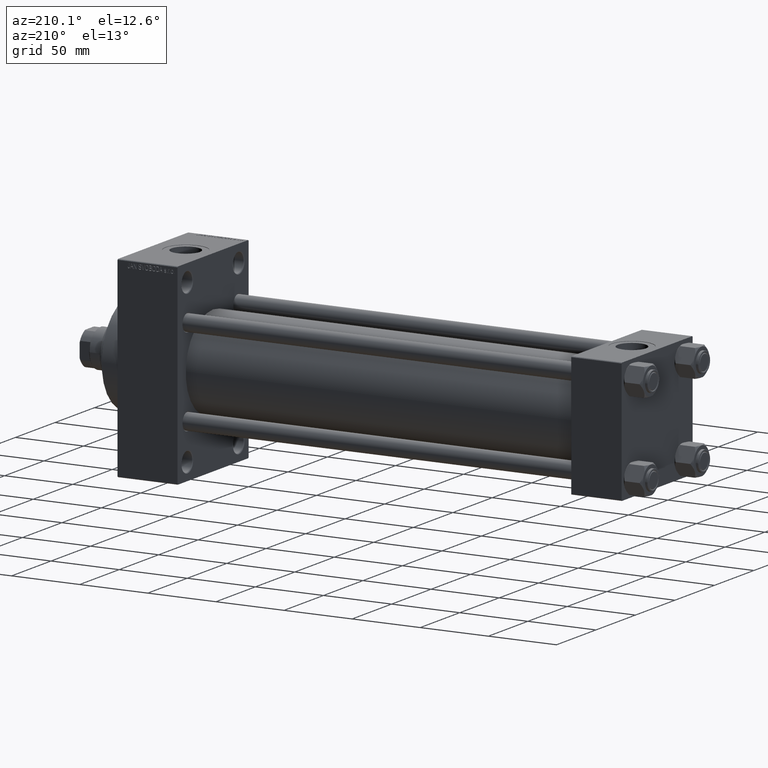
[diagram: clean part render]
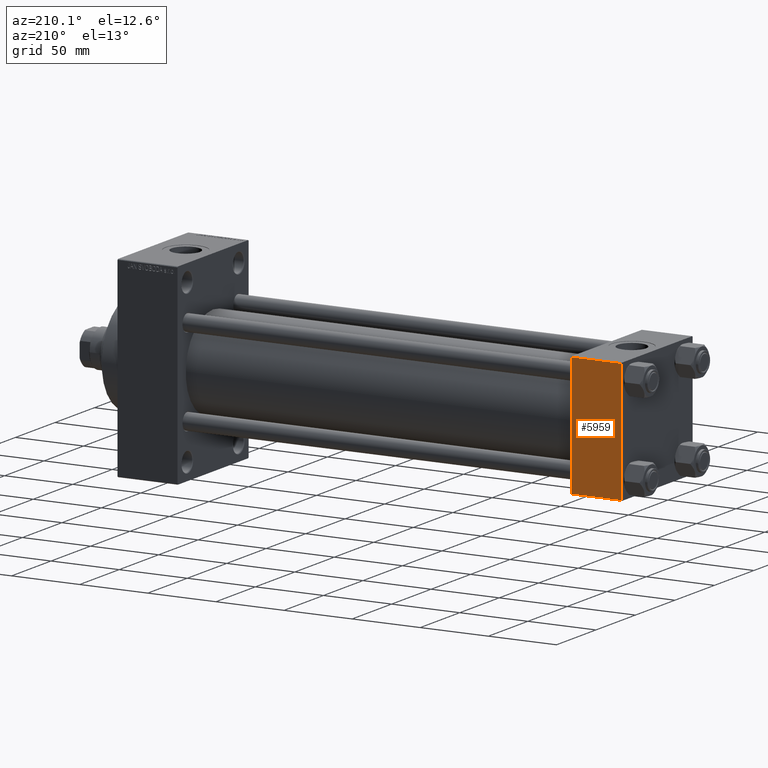
[diagram: same view with one face highlighted and labeled with its STEP entity id]
A machine part, auxiliary view. The second image highlights one B-rep face of the part: STEP entity #5959.
In plain terms, the highlighted planar face has unit normal (0, 1, 0).
Its self-contained STEP definition (entity closure, byte-faithful):
#846 = CARTESIAN_POINT ( 'NONE',  ( 0.000000000000000000, 44.99999999999998579, 45.00000000000001421 ) ) ;
#2334 = PLANE ( 'NONE',  #39017 ) ;
#3953 = VERTEX_POINT ( 'NONE', #8937 ) ;
#4273 = FACE_OUTER_BOUND ( 'NONE', #5543, .T. ) ;
#4653 = ORIENTED_EDGE ( 'NONE', *, *, #36367, .T. ) ;
#5543 = EDGE_LOOP ( 'NONE', ( #27495, #45702, #22231, #4653 ) ) ;
#5959 = ADVANCED_FACE ( 'NONE', ( #4273 ), #2334, .T. ) ;
#6162 = VECTOR ( 'NONE', #29346, 1000.000000000000000 ) ;
#7506 = LINE ( 'NONE', #36293, #6162 ) ;
#8519 = LINE ( 'NONE', #846, #26911 ) ;
#8937 = CARTESIAN_POINT ( 'NONE',  ( 0.000000000000000000, 44.99999999999998579, 44.50000000000001421 ) ) ;
#10210 = EDGE_CURVE ( 'NONE', #3953, #34571, #8519, .T. ) ;
#11081 = EDGE_CURVE ( 'NONE', #42859, #34571, #7506, .T. ) ;
#13588 = CARTESIAN_POINT ( 'NONE',  ( 37.00000000000000000, 44.99999999999998579, 45.00000000000001421 ) ) ;
#15882 = CARTESIAN_POINT ( 'NONE',  ( 37.00000000000000000, 44.99999999999998579, -44.49999999999995737 ) ) ;
#17809 = VERTEX_POINT ( 'NONE', #21118 ) ;
#20104 = DIRECTION ( 'NONE',  ( 0.000000000000000000, -0.000000000000000000, 1.000000000000000000 ) ) ;
#20299 = LINE ( 'NONE', #45699, #44701 ) ;
#20412 = VECTOR ( 'NONE', #47254, 1000.000000000000000 ) ;
#21118 = CARTESIAN_POINT ( 'NONE',  ( 37.00000000000000000, 44.99999999999998579, 44.50000000000001421 ) ) ;
#22231 = ORIENTED_EDGE ( 'NONE', *, *, #10210, .F. ) ;
#26911 = VECTOR ( 'NONE', #44728, 1000.000000000000000 ) ;
#27495 = ORIENTED_EDGE ( 'NONE', *, *, #42281, .T. ) ;
#29346 = DIRECTION ( 'NONE',  ( -1.000000000000000000, 0.000000000000000000, 0.000000000000000000 ) ) ;
#34571 = VERTEX_POINT ( 'NONE', #43651 ) ;
#36293 = CARTESIAN_POINT ( 'NONE',  ( 37.00000000000000000, 44.99999999999998579, -44.49999999999998579 ) ) ;
#36367 = EDGE_CURVE ( 'NONE', #3953, #17809, #20299, .T. ) ;
#39017 = AXIS2_PLACEMENT_3D ( 'NONE', #13588, #46442, #20104 ) ;
#39828 = LINE ( 'NONE', #42968, #20412 ) ;
#41860 = DIRECTION ( 'NONE',  ( 1.000000000000000000, 0.000000000000000000, 0.000000000000000000 ) ) ;
#42281 = EDGE_CURVE ( 'NONE', #17809, #42859, #39828, .T. ) ;
#42859 = VERTEX_POINT ( 'NONE', #15882 ) ;
#42968 = CARTESIAN_POINT ( 'NONE',  ( 37.00000000000000000, 44.99999999999998579, 45.00000000000001421 ) ) ;
#43651 = CARTESIAN_POINT ( 'NONE',  ( 0.000000000000000000, 44.99999999999998579, -44.49999999999995737 ) ) ;
#44701 = VECTOR ( 'NONE', #41860, 1000.000000000000000 ) ;
#44728 = DIRECTION ( 'NONE',  ( 0.000000000000000000, 0.000000000000000000, -1.000000000000000000 ) ) ;
#45699 = CARTESIAN_POINT ( 'NONE',  ( 37.00000000000000000, 44.99999999999998579, 44.50000000000001421 ) ) ;
#45702 = ORIENTED_EDGE ( 'NONE', *, *, #11081, .T. ) ;
#46442 = DIRECTION ( 'NONE',  ( -0.000000000000000000, 1.000000000000000000, 0.000000000000000000 ) ) ;
#47254 = DIRECTION ( 'NONE',  ( 0.000000000000000000, 0.000000000000000000, -1.000000000000000000 ) ) ;